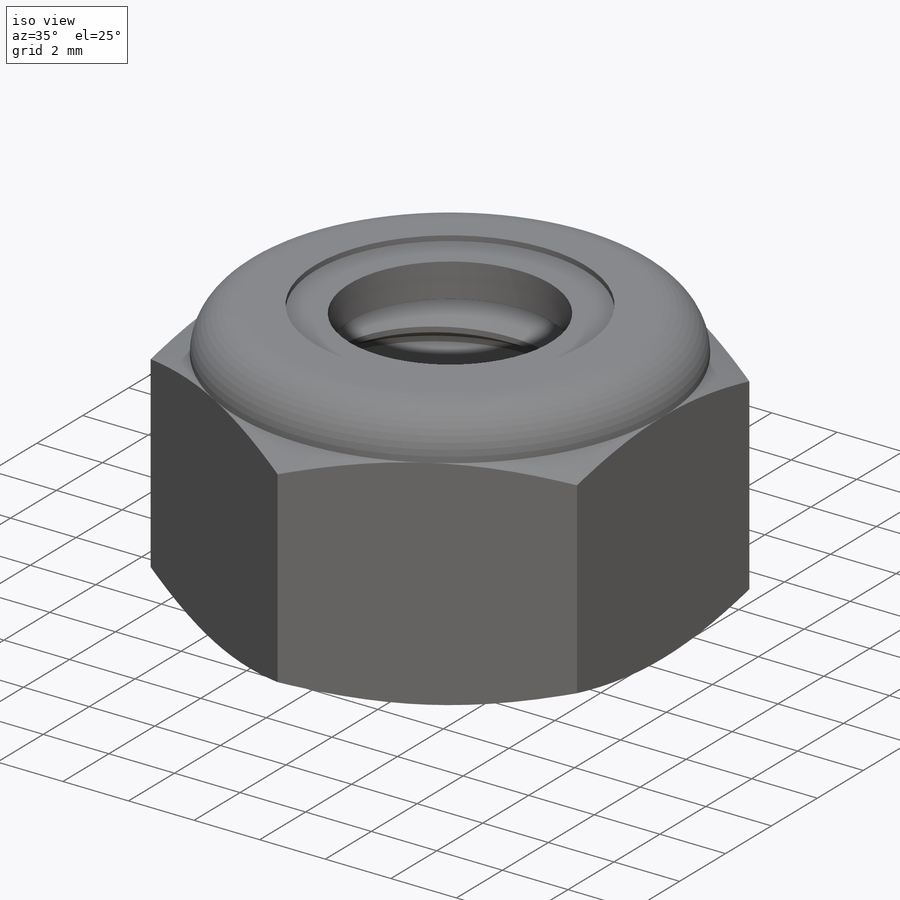
[diagram: iso view]
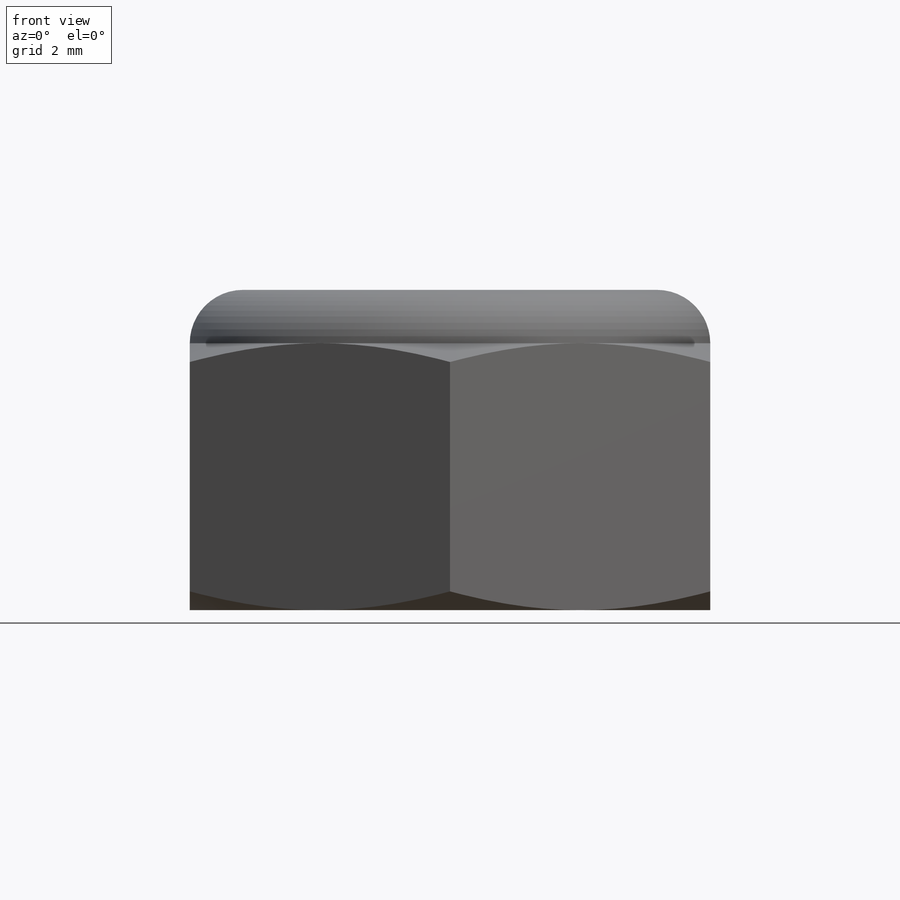
[diagram: front view]
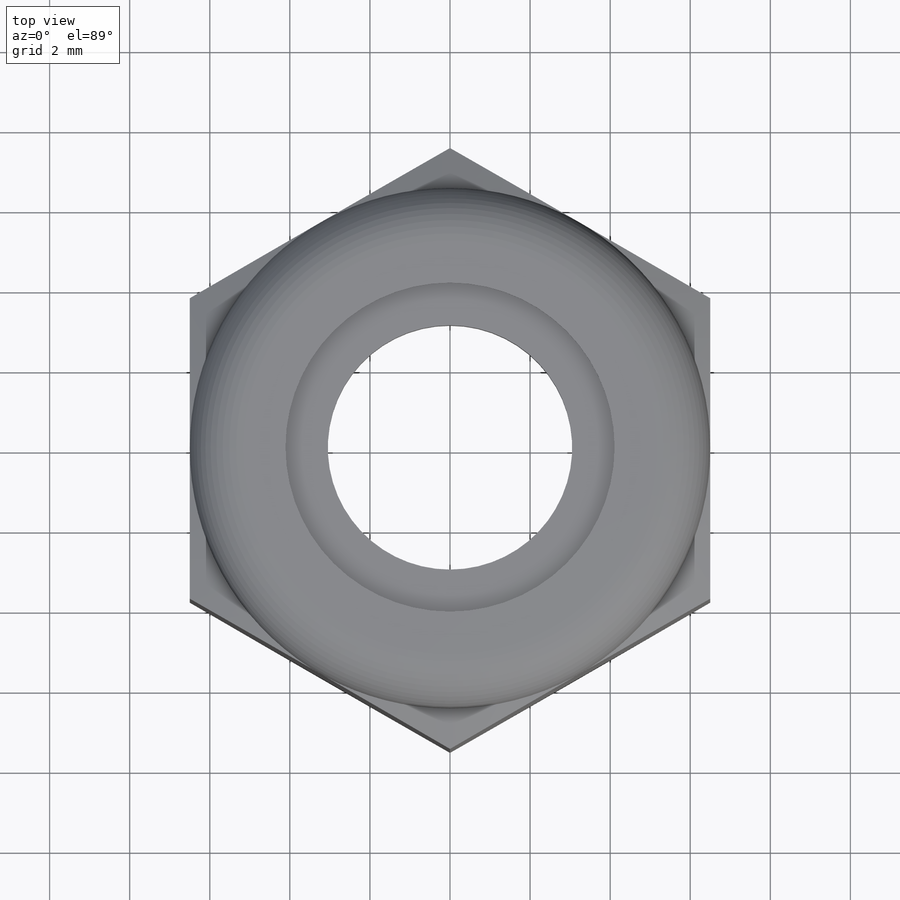
[diagram: top view]
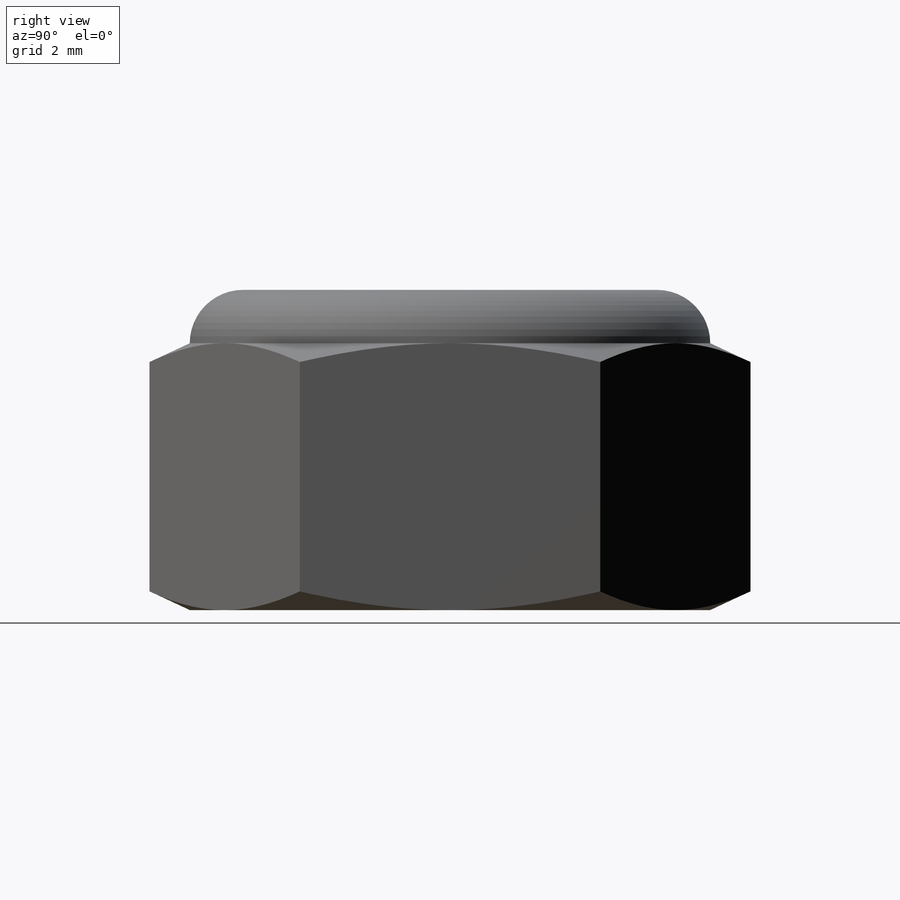
[diagram: right view]
SOLIDWORKS PART (.sldprt)
format: sldprt  version: not decoded by parser v0  size: 708,608 bytes
history: native  units: mm
features: sketch x9, extrude x3, revolve x2, cut_revolve x2, material x1, helix x1, sweep x1, boolean_combine x1 (+15 scaffold rows collapsed; 1 parser-record rows omitted)
feature tree (36):
  scaffold x15  (default folders/planes/origin — collapsed)
  material  "Material <not specified>"
  sketch  "Sketch1"  dims[Hex Flats=13.0mm]
  extrude  "Extrude1"  Depth=8mm Height=8mm
  sketch  "Sketch2"  dims[Thread Dia=8.0mm]
  revolve  "Revolve1"  Angle=360deg
  sketch  "Sketch8"  dims[D1=0.0mm]
  helix  "Helix/Spiral1"  Pitch=9.25mm
  sketch  "Sketch10"  dims[D1=0.0mm]
  extrude  "Boss-Extrude1"  [1 undecoded]
  sketch  "Sketch11"  dims[D1=0.0mm]
  extrude  "Boss-Extrude2"  [1 undecoded]
  parser-record x1  (decoder bookkeeping rows leaked as tree rows — omitted from the tree; the rows remain in map.json)
  sketch  "Sketch9"  dims[c1.D1=~0.15625mm c1.D2=0.625mm c1.D3=~1.019353mm c2.D3=60.0deg c2.D4=3.0625mm]
  sweep  "Cut-Sweep1"
  boolean_combine  "Combine1"
  sketch  "Sketch5"  dims[c1.D1=~25.750443mm c2.D1=25.0deg c2.D2=1.27mm c2.D3=8.0mm c2.D4=~1.333333mm]
  cut_revolve  "Cut-Revolve3"  Angle=360deg
  sketch  "Sketch6"  dims[c1.D1=0.1524mm c1.D2=~2.652203mm c1.D3=~0.911192mm c2.D2=~2.945111mm c2.D3=~0.034628mm c3.D2=~2.652203mm c3.D3=~0.328806mm c4.D2=1.25mm c4.D3=~0.15625mm c4.D4=~2.747697mm c5.D4=60.0deg]
  cut_revolve  "Cut-Revolve4"  Angle=360deg
  sketch  "Sketch7"  dims[D1=0.0762mm]
  revolve  "Revolve2"  Angle=360deg
decode coverage: 15 of 19 modeling features carry decoded parameters
note: ~ marks probable driven/reference dimensions
note: 2 parameter values undecoded
note: suppression state not decoded; provenance and decode notes live in map.json
